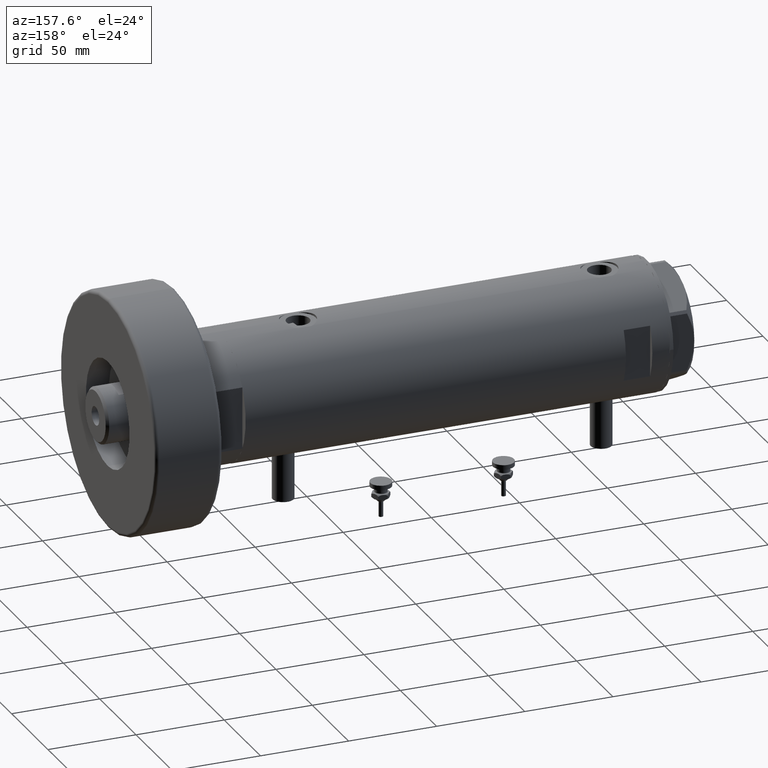
[diagram: clean part render]
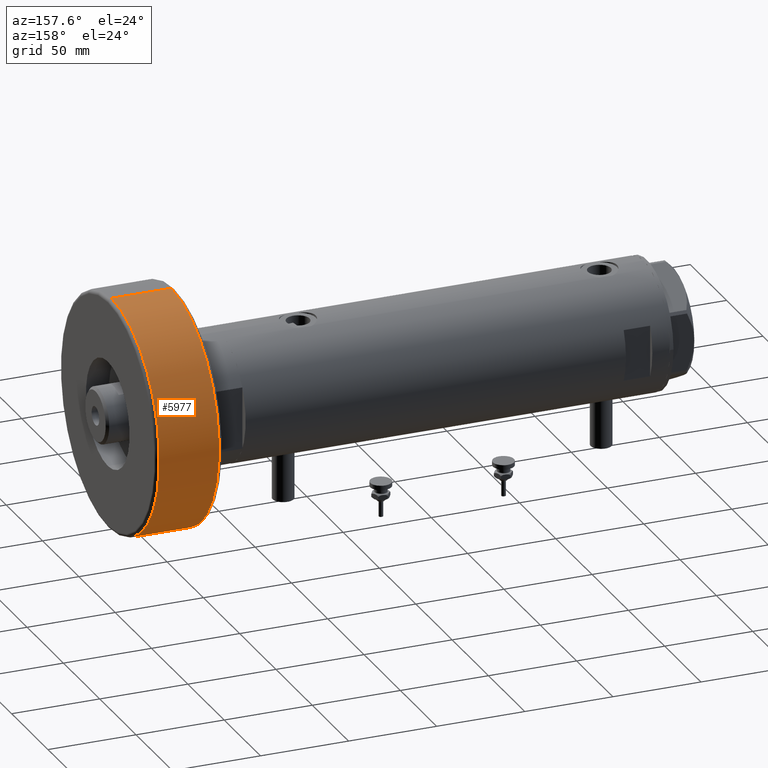
[diagram: same view with one face highlighted and labeled with its STEP entity id]
A machine part, auxiliary view. The second image highlights one B-rep face of the part: STEP entity #5977.
In plain terms, the highlighted cylindrical surface (partial cylindrical patch) has radius 66 mm, axis along (-1, -0, 0).
Its self-contained STEP definition (entity closure, byte-faithful):
#87 = CARTESIAN_POINT ( 'NONE',  ( -66.00000000000000000, 0.000000000000000000, 36.00000000000000000 ) ) ;
#111 = DIRECTION ( 'NONE',  ( -0.000000000000000000, -0.000000000000000000, -1.000000000000000000 ) ) ;
#210 = ORIENTED_EDGE ( 'NONE', *, *, #3811, .T. ) ;
#654 = CIRCLE ( 'NONE', #5033, 66.00000000000000000 ) ;
#850 = CIRCLE ( 'NONE', #4744, 66.00000000000000000 ) ;
#1046 = CARTESIAN_POINT ( 'NONE',  ( 66.00000000000000000, 8.082668874372532400E-15, 38.00000000000000000 ) ) ;
#1086 = DIRECTION ( 'NONE',  ( -0.000000000000000000, -0.000000000000000000, -1.000000000000000000 ) ) ;
#1093 = ORIENTED_EDGE ( 'NONE', *, *, #1493, .T. ) ;
#1132 = VECTOR ( 'NONE', #111, 1000.000000000000000 ) ;
#1154 = EDGE_CURVE ( 'NONE', #2444, #4994, #850, .T. ) ;
#1469 = DIRECTION ( 'NONE',  ( 1.000000000000000000, 0.000000000000000000, 0.000000000000000000 ) ) ;
#1483 = AXIS2_PLACEMENT_3D ( 'NONE', #5636, #3234, #5274 ) ;
#1493 = EDGE_CURVE ( 'NONE', #4994, #2573, #5480, .T. ) ;
#1501 = EDGE_CURVE ( 'NONE', #2444, #4348, #3594, .T. ) ;
#1517 = EDGE_LOOP ( 'NONE', ( #5951, #1093, #210, #5691 ) ) ;
#2095 = DIRECTION ( 'NONE',  ( 0.000000000000000000, 0.000000000000000000, 1.000000000000000000 ) ) ;
#2444 = VERTEX_POINT ( 'NONE', #87 ) ;
#2573 = VERTEX_POINT ( 'NONE', #3263 ) ;
#3234 = DIRECTION ( 'NONE',  ( -0.000000000000000000, -0.000000000000000000, -1.000000000000000000 ) ) ;
#3263 = CARTESIAN_POINT ( 'NONE',  ( 66.00000000000000000, 8.082668874372532400E-15, 2.000000000000001776 ) ) ;
#3283 = VECTOR ( 'NONE', #1086, 1000.000000000000000 ) ;
#3594 = LINE ( 'NONE', #4076, #1132 ) ;
#3685 = CYLINDRICAL_SURFACE ( 'NONE', #1483, 66.00000000000000000 ) ;
#3811 = EDGE_CURVE ( 'NONE', #2573, #4348, #654, .T. ) ;
#4022 = CARTESIAN_POINT ( 'NONE',  ( 0.000000000000000000, 0.000000000000000000, 2.000000000000001776 ) ) ;
#4060 = DIRECTION ( 'NONE',  ( 1.000000000000000000, 0.000000000000000000, 0.000000000000000000 ) ) ;
#4076 = CARTESIAN_POINT ( 'NONE',  ( -66.00000000000000000, 0.000000000000000000, 38.00000000000000000 ) ) ;
#4171 = FACE_OUTER_BOUND ( 'NONE', #1517, .T. ) ;
#4212 = CARTESIAN_POINT ( 'NONE',  ( 66.00000000000000000, 8.082668874372532400E-15, 36.00000000000000000 ) ) ;
#4303 = CARTESIAN_POINT ( 'NONE',  ( 0.000000000000000000, 0.000000000000000000, 36.00000000000000000 ) ) ;
#4348 = VERTEX_POINT ( 'NONE', #6297 ) ;
#4373 = DIRECTION ( 'NONE',  ( -0.000000000000000000, -0.000000000000000000, -1.000000000000000000 ) ) ;
#4744 = AXIS2_PLACEMENT_3D ( 'NONE', #4303, #4373, #1469 ) ;
#4994 = VERTEX_POINT ( 'NONE', #4212 ) ;
#5033 = AXIS2_PLACEMENT_3D ( 'NONE', #4022, #2095, #4060 ) ;
#5274 = DIRECTION ( 'NONE',  ( -1.000000000000000000, 0.000000000000000000, 0.000000000000000000 ) ) ;
#5480 = LINE ( 'NONE', #1046, #3283 ) ;
#5636 = CARTESIAN_POINT ( 'NONE',  ( 0.000000000000000000, 0.000000000000000000, 38.00000000000000000 ) ) ;
#5691 = ORIENTED_EDGE ( 'NONE', *, *, #1501, .F. ) ;
#5951 = ORIENTED_EDGE ( 'NONE', *, *, #1154, .T. ) ;
#5977 = ADVANCED_FACE ( 'NONE', ( #4171 ), #3685, .T. ) ;
#6297 = CARTESIAN_POINT ( 'NONE',  ( -66.00000000000000000, 0.000000000000000000, 2.000000000000001776 ) ) ;